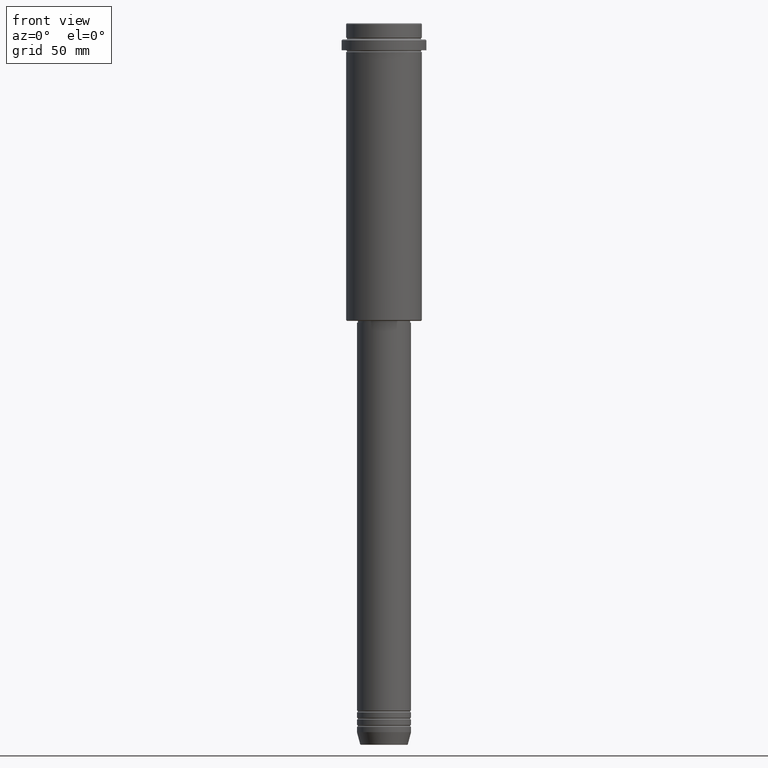
[diagram: clean part render]
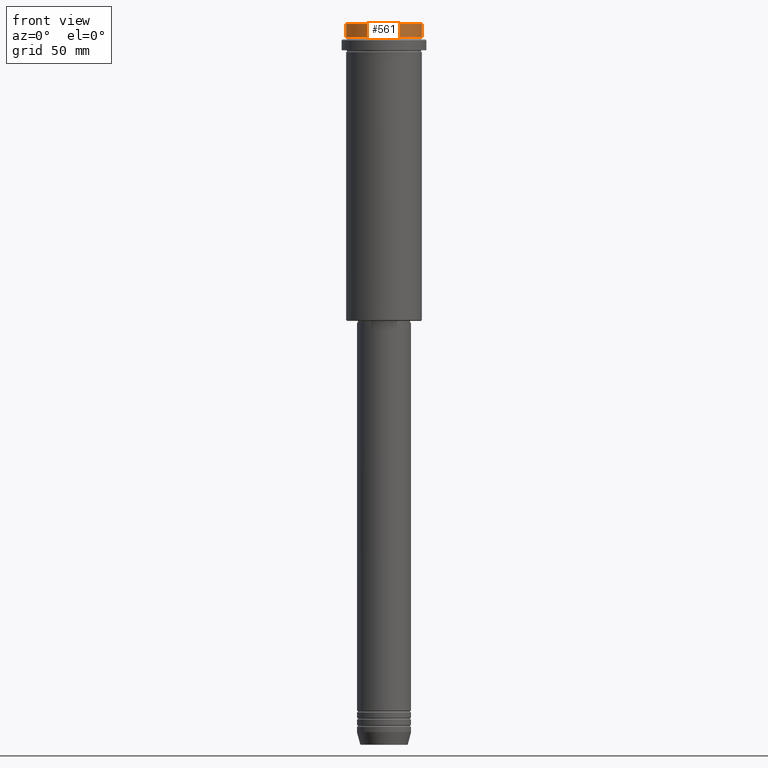
[diagram: same view with one face highlighted and labeled with its STEP entity id]
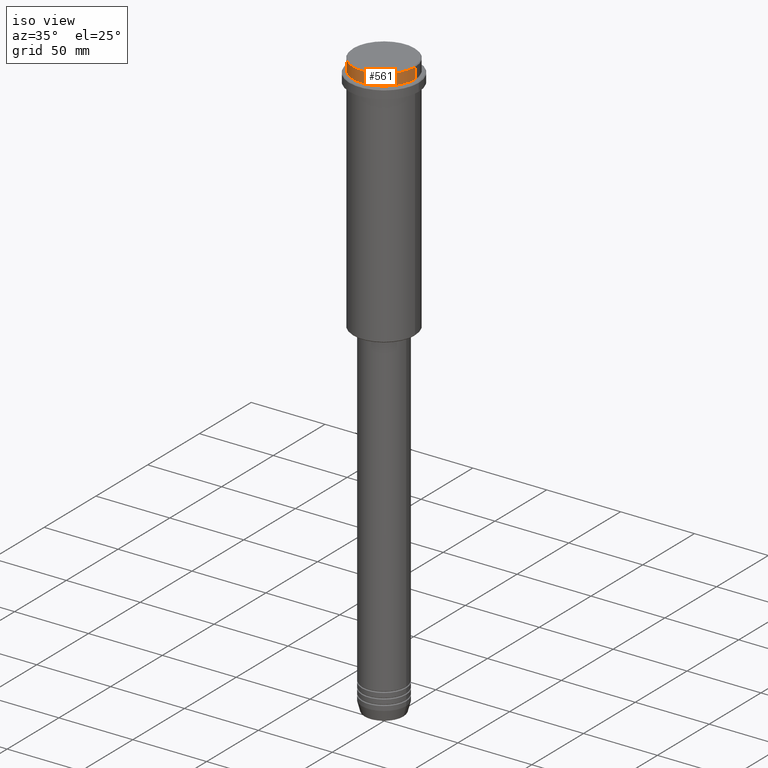
[diagram: same view with one face highlighted and labeled with its STEP entity id]
A machine part, front view. The second image highlights one B-rep face of the part: STEP entity #561.
A second angle (iso view) of the same face is appended — the face is thin or edge-on in the first view.
In plain terms, the highlighted cylindrical surface (partial cylindrical patch) has radius 21 mm, axis along (-0, -0, 1).
Its self-contained STEP definition (entity closure, byte-faithful):
#37 = AXIS2_PLACEMENT_3D ( 'NONE', #86, #1302, #1330 ) ;
#38 = AXIS2_PLACEMENT_3D ( 'NONE', #912, #1026, #45 ) ;
#45 = DIRECTION ( 'NONE',  ( 1.000000000000000000, 0.000000000000000000, 0.000000000000000000 ) ) ;
#86 = CARTESIAN_POINT ( 'NONE',  ( 0.000000000000000000, 0.000000000000000000, 0.000000000000000000 ) ) ;
#93 = CARTESIAN_POINT ( 'NONE',  ( 20.99999999999999645, 0.000000000000000000, 0.000000000000000000 ) ) ;
#140 = EDGE_CURVE ( 'NONE', #740, #475, #1098, .T. ) ;
#247 = FACE_OUTER_BOUND ( 'NONE', #1168, .T. ) ;
#266 = ORIENTED_EDGE ( 'NONE', *, *, #140, .T. ) ;
#340 = CARTESIAN_POINT ( 'NONE',  ( 20.99999999999999645, 0.000000000000000000, -0.4999999999999241163 ) ) ;
#421 = CIRCLE ( 'NONE', #38, 20.99999999999999645 ) ;
#475 = VERTEX_POINT ( 'NONE', #340 ) ;
#489 = CIRCLE ( 'NONE', #1406, 20.99999999999999645 ) ;
#510 = LINE ( 'NONE', #1377, #796 ) ;
#527 = EDGE_CURVE ( 'NONE', #475, #600, #489, .T. ) ;
#561 = ADVANCED_FACE ( 'NONE', ( #247 ), #1163, .T. ) ;
#574 = DIRECTION ( 'NONE',  ( 1.000000000000000000, 0.000000000000000000, 0.000000000000000000 ) ) ;
#599 = CARTESIAN_POINT ( 'NONE',  ( 20.99999999999999645, 0.000000000000000000, -7.999999999999998224 ) ) ;
#600 = VERTEX_POINT ( 'NONE', #1204 ) ;
#642 = CARTESIAN_POINT ( 'NONE',  ( -20.99999999999999645, 2.571758278209441267E-15, -7.999999999999998224 ) ) ;
#740 = VERTEX_POINT ( 'NONE', #599 ) ;
#766 = ORIENTED_EDGE ( 'NONE', *, *, #527, .T. ) ;
#770 = DIRECTION ( 'NONE',  ( -0.000000000000000000, -0.000000000000000000, 1.000000000000000000 ) ) ;
#796 = VECTOR ( 'NONE', #958, 1000.000000000000000 ) ;
#812 = ORIENTED_EDGE ( 'NONE', *, *, #1304, .F. ) ;
#911 = DIRECTION ( 'NONE',  ( 0.000000000000000000, 0.000000000000000000, -1.000000000000000000 ) ) ;
#912 = CARTESIAN_POINT ( 'NONE',  ( 0.000000000000000000, 0.000000000000000000, -7.999999999999998224 ) ) ;
#958 = DIRECTION ( 'NONE',  ( -0.000000000000000000, -0.000000000000000000, 1.000000000000000000 ) ) ;
#1026 = DIRECTION ( 'NONE',  ( -0.000000000000000000, -0.000000000000000000, 1.000000000000000000 ) ) ;
#1078 = EDGE_CURVE ( 'NONE', #1267, #740, #421, .T. ) ;
#1094 = ORIENTED_EDGE ( 'NONE', *, *, #1078, .T. ) ;
#1098 = LINE ( 'NONE', #93, #1364 ) ;
#1163 = CYLINDRICAL_SURFACE ( 'NONE', #37, 20.99999999999999645 ) ;
#1168 = EDGE_LOOP ( 'NONE', ( #812, #1094, #266, #766 ) ) ;
#1204 = CARTESIAN_POINT ( 'NONE',  ( -20.99999999999999645, 2.571758278209441267E-15, -0.4999999999999241163 ) ) ;
#1218 = CARTESIAN_POINT ( 'NONE',  ( 0.000000000000000000, 0.000000000000000000, -0.4999999999999241163 ) ) ;
#1267 = VERTEX_POINT ( 'NONE', #642 ) ;
#1302 = DIRECTION ( 'NONE',  ( -0.000000000000000000, -0.000000000000000000, 1.000000000000000000 ) ) ;
#1304 = EDGE_CURVE ( 'NONE', #1267, #600, #510, .T. ) ;
#1330 = DIRECTION ( 'NONE',  ( 1.000000000000000000, 0.000000000000000000, 0.000000000000000000 ) ) ;
#1364 = VECTOR ( 'NONE', #770, 1000.000000000000000 ) ;
#1377 = CARTESIAN_POINT ( 'NONE',  ( -20.99999999999999645, 2.571758278209441267E-15, 0.000000000000000000 ) ) ;
#1406 = AXIS2_PLACEMENT_3D ( 'NONE', #1218, #911, #574 ) ;